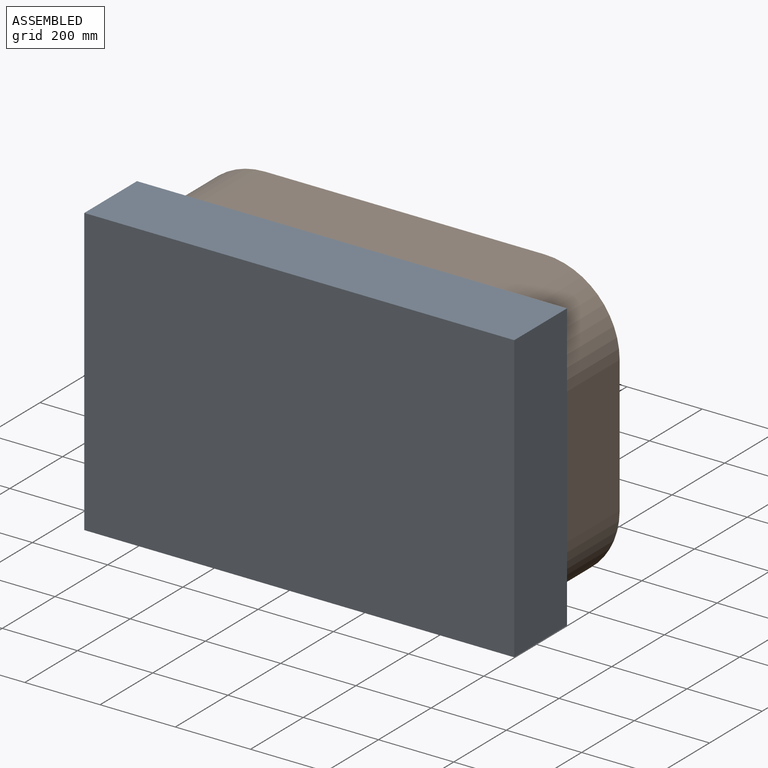
[diagram: assembled view]
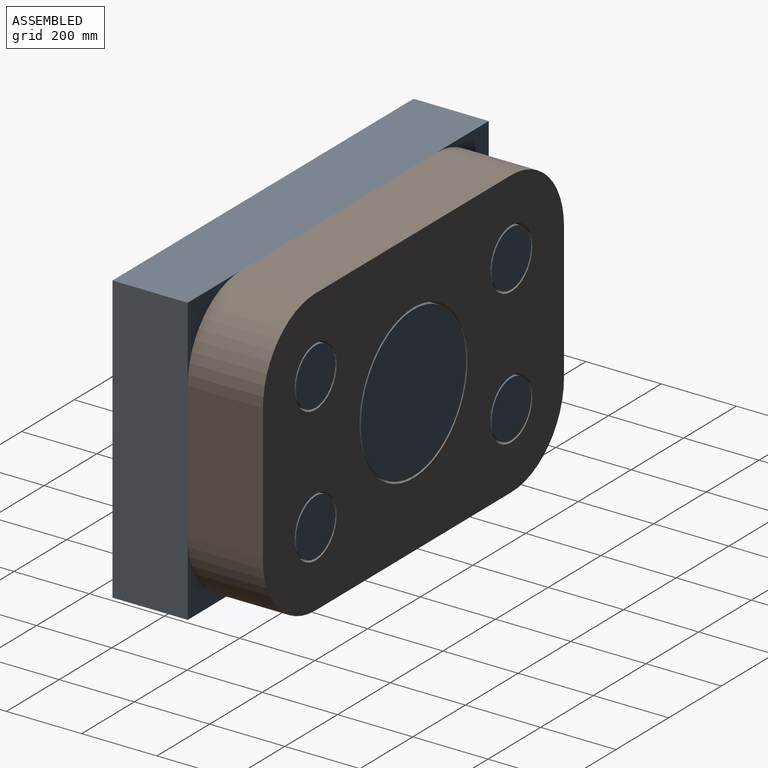
[diagram: assembled view, second angle]
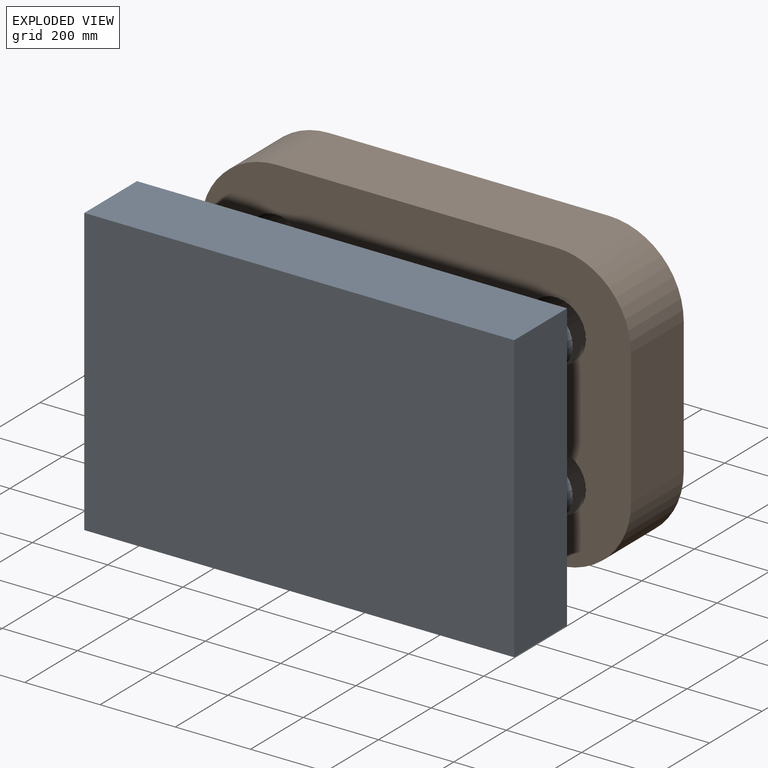
[diagram: exploded view]
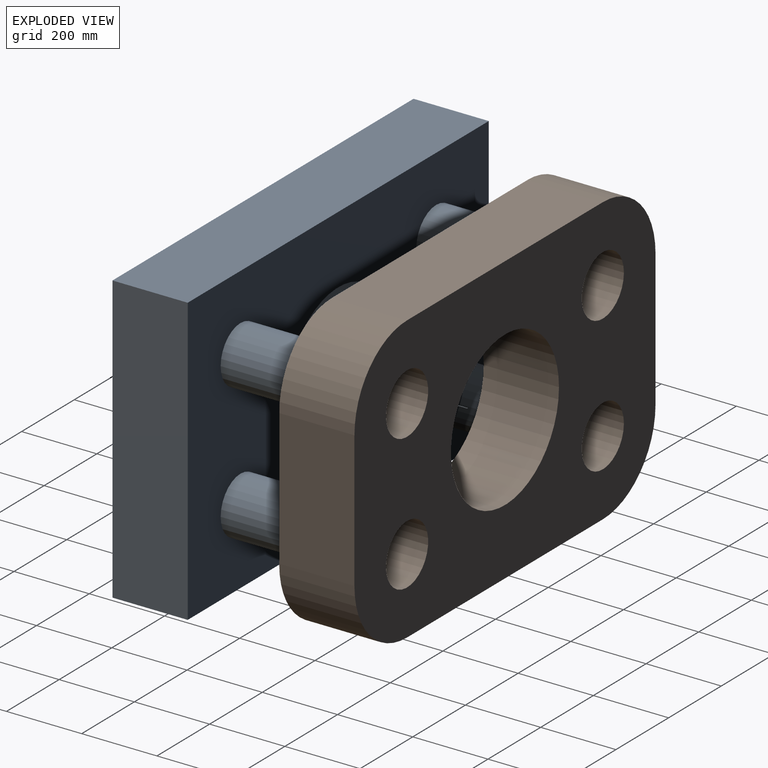
[diagram: exploded view, second angle]
ASSEMBLY  parts=2 mates=2
PART A: 16 faces, bbox 1143x762x400 mm
  f0: plane 762x200mm, normal (1,0,0), area 152400mm2, adj f1,f3,f4,f5
  f1: plane 1143x200mm, normal (0,1,0), area 228600mm2, adj f0,f2,f4,f5
  f2: plane 762x200mm, normal (-1,0,0), area 152400mm2, adj f1,f3,f4,f5
  f3: plane 1143x200mm, normal (0,-1,0), area 228600mm2, adj f0,f2,f4,f5
  f4: plane 1143x762mm, normal (0,0,1), area 674616.5mm2, adj f0,f1,f2,f3,f6,f8,f10,f12
  f5: plane 1143x762mm, normal (0,0,-1), area 870966mm2, adj f0,f1,f2,f3
  f6: cylinder r=200mm len=400mm, axis (0,0,-1), area 251327.4mm2, adj f4,f7
  f7: plane 400x400mm, normal (0,0,1), area 125663.7mm2, adj f6
  f8: cylinder r=75mm len=200mm, axis (0,0,-1), area 94247.8mm2, adj f4,f9
  f9: plane 150x150mm, normal (0,0,1), area 17671.5mm2, adj f8
  f10: cylinder r=75mm len=200mm, axis (0,0,-1), area 94247.8mm2, adj f4,f11
  f11: plane 150x150mm, normal (0,0,1), area 17671.5mm2, adj f10
  f12: cylinder r=75mm len=200mm, axis (0,0,-1), area 94247.8mm2, adj f4,f13
  f13: plane 150x150mm, normal (0,0,1), area 17671.5mm2, adj f12
  f14: cylinder r=75mm len=200mm, axis (0,0,-1), area 94247.8mm2, adj f4,f15
  f15: plane 150x150mm, normal (0,0,1), area 17671.5mm2, adj f14
PART B: 15 faces, bbox 1143x762x200 mm
  f0: plane 743x200mm, normal (0,1,0), area 148600mm2, adj f1,f10,f13,f14
  f1: cylinder r=200mm len=200mm, axis (0,0,-1), area 62831.9mm2, adj f0,f2,f13,f14
  f2: plane 362x200mm, normal (-1,0,0), area 72400mm2, adj f1,f3,f13,f14
  f3: cylinder r=200mm len=200mm, axis (0,0,-1), area 62831.9mm2, adj f2,f4,f13,f14
  f4: plane 743x200mm, normal (0,-1,0), area 148600mm2, adj f3,f5,f13,f14
  f5: cylinder r=200mm len=200mm, axis (0,0,-1), area 62831.9mm2, adj f4,f6,f13,f14
  f6: plane 362x200mm, normal (1,0,0), area 72400mm2, adj f5,f10,f13,f14
  f7: cylinder r=80mm len=200mm, axis (0,0,-1), area 100531mm2, adj f13,f14
  f8: cylinder r=80mm len=200mm, axis (0,0,-1), area 100531mm2, adj f13,f14
  f9: cylinder r=205mm len=410mm, axis (0,0,-1), area 257610.6mm2, adj f13,f14
  f10: cylinder r=200mm len=200mm, axis (0,0,-1), area 62831.9mm2, adj f0,f6,f13,f14
  f11: cylinder r=80mm len=200mm, axis (0,0,-1), area 100531mm2, adj f13,f14
  f12: cylinder r=80mm len=200mm, axis (0,0,-1), area 100531mm2, adj f13,f14
  f13: plane 1143x762mm, normal (0,0,1), area 624179.5mm2, adj f0,f1,f2,f3,f4,f5,f6,f7
  f14: plane 1143x762mm, normal (0,0,-1), area 624179.5mm2, adj f0,f1,f2,f3,f4,f5,f6,f7
PLACE A rot(axis=(-1,0,0),90deg) t=(1253.79,279.54,67.96)mm
PLACE B rot(axis=(0,-0.71,0.71),180deg) t=(1253.79,679.54,67.96)mm
MATE parallel B.f9 <-> A.f4  axis (0,-1,0) through (1253.79,479.54,67.96)mm
MATE slider A.f8 <-> B.f1  axis (0,-1,0) through (1625.29,579.54,-113.04)mm
